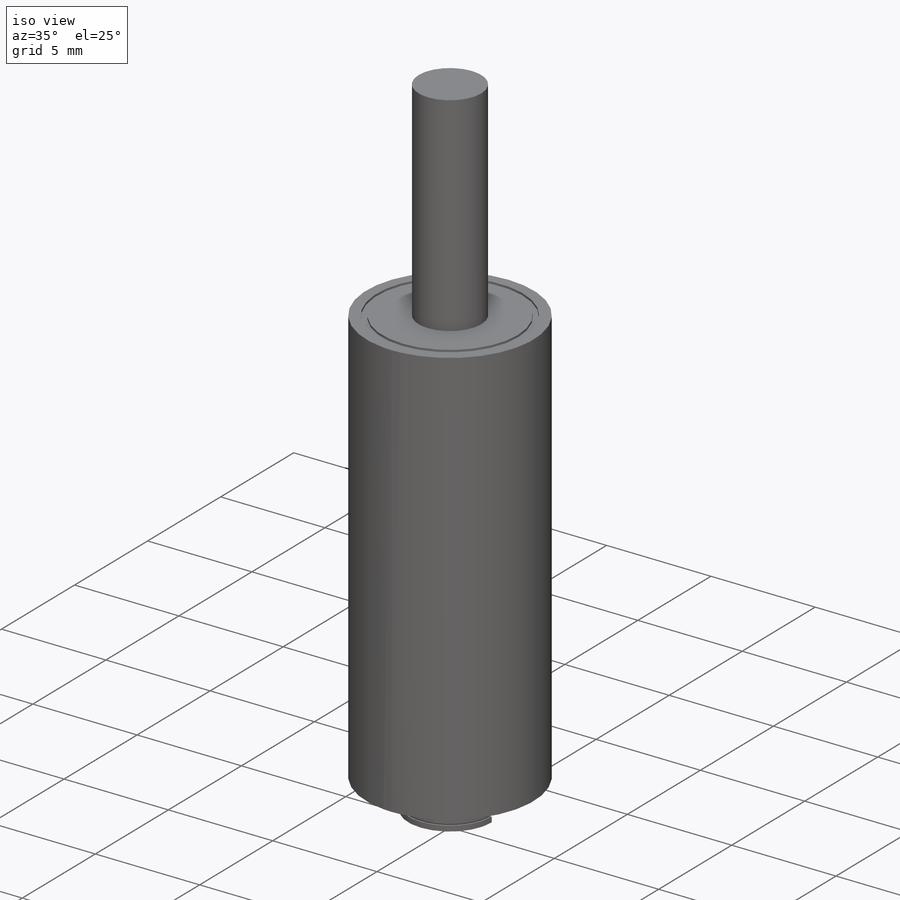
[diagram: iso view]
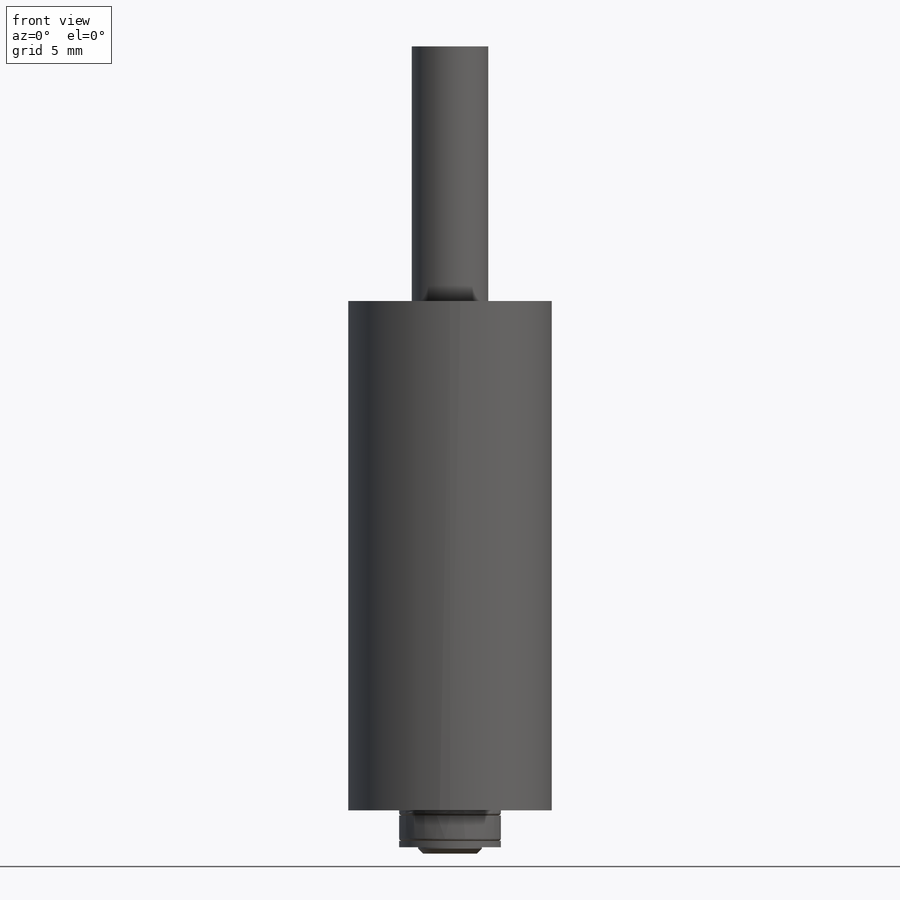
[diagram: front view]
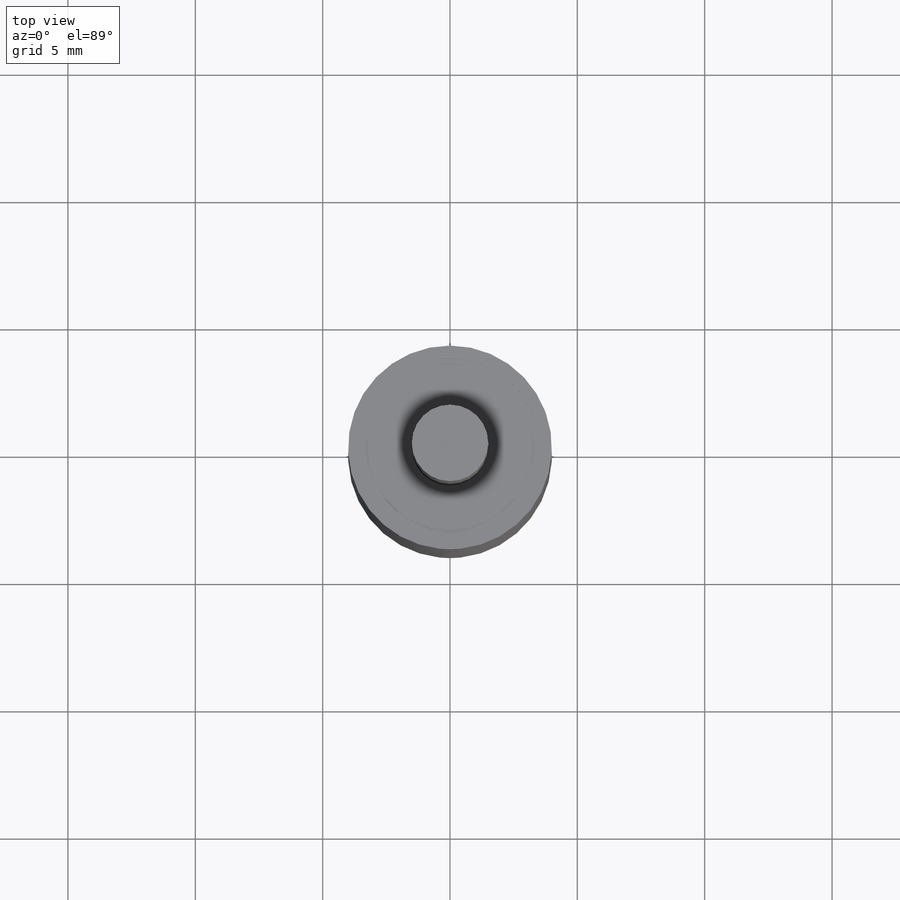
[diagram: top view]
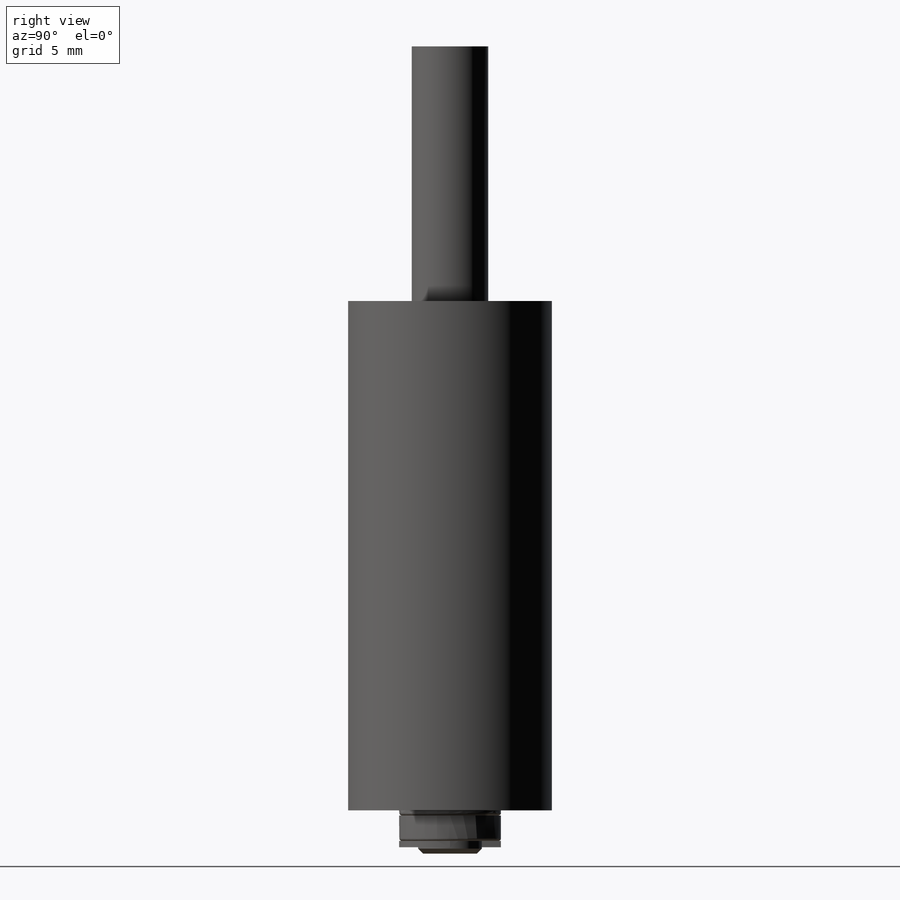
[diagram: right view]
SOLIDWORKS PART (.sldprt)
format: sldprt  version: not decoded by parser v0  size: 221,696 bytes
history: native  units: mm
features: sketch x8, extrude x7, fillet x2, material x1, chamfer x1 (+12 scaffold rows collapsed)
feature tree (31):
  scaffold x12  (default folders/planes/origin — collapsed)
  material  "Material <not specified>"
  sketch  "Sketch1"  dims[D1=8.0mm]
  extrude  "Boss-Extrude1"  Depth=20mm
  sketch  "Sketch2"  dims[c1.D1=0.5mm c2.D1=0.1mm c2.D5=0.25mm c2.D6=10.0mm c2.D7=5.0mm]
  sketch  "Sketch3"  dims[D1=4.0mm]
  extrude  "Boss-Extrude2"  Depth=0.2mm
  fillet  "Fillet1"  Radius=0.1mm
  sketch  "Sketch4"  dims[D1=4.0mm]
  extrude  "Boss-Extrude3"  Depth=1mm
  fillet  "Fillet2"  Radius=0.1mm
  sketch  "Sketch5"  dims[D1=2.5mm]
  extrude  "Boss-Extrude4"  Depth=0.5mm
  chamfer  "Chamfer1"  Distance=0.2mm Angle=45deg
  sketch  "Sketch6"
  extrude  "Boss-Extrude5"  Depth=0.25mm
  sketch  "Sketch7"  dims[D1=3.0mm]
  extrude  "Boss-Extrude6"  Depth=10mm
  sketch  "Sketch8"  dims[D1=0.5mm]
  extrude  "Cut-Extrude-Thin2"  Depth=0.1mm
decode coverage: 17 of 18 modeling features carry decoded parameters
note: suppression state not decoded; provenance and decode notes live in map.json
